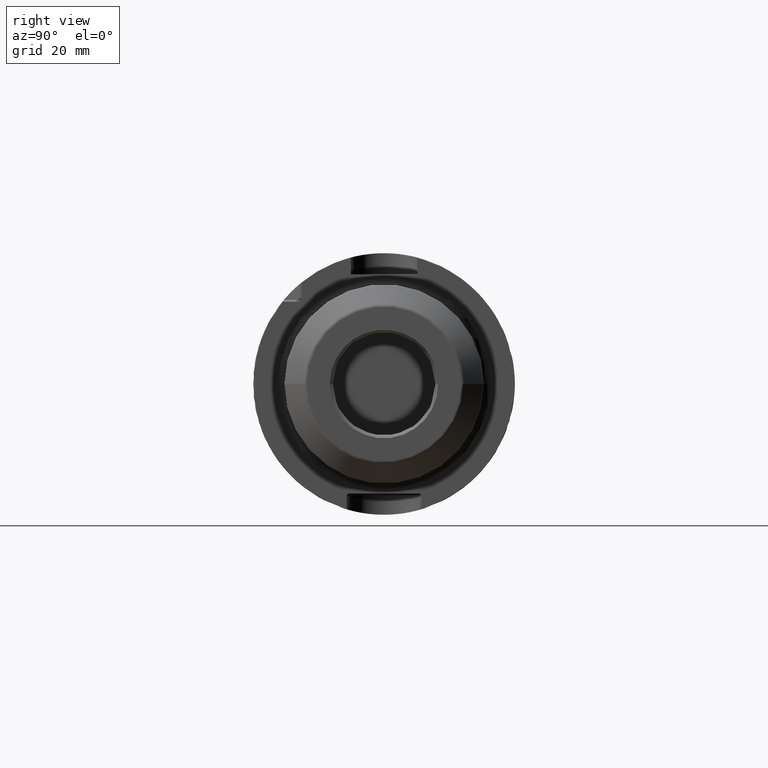
[diagram: clean part render]
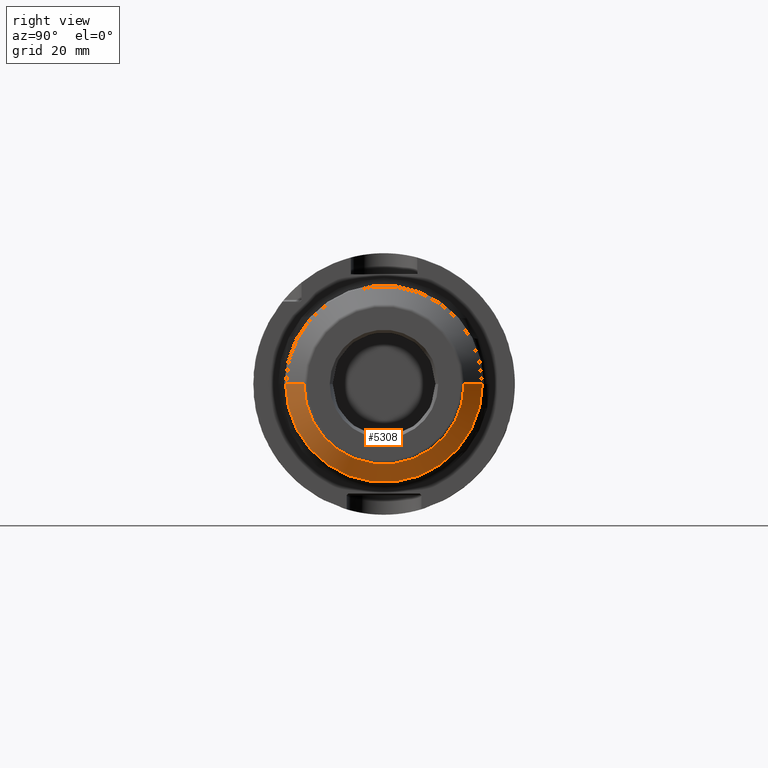
[diagram: same view with one face highlighted and labeled with its STEP entity id]
A machine part, right view. The second image highlights one B-rep face of the part: STEP entity #5308.
In plain terms, the highlighted conical surface has half-angle 45 deg.
Its self-contained STEP definition (entity closure, byte-faithful):
#2004=CARTESIAN_POINT('',(1.152928932188E2,0.E0,0.E0));
#2005=DIRECTION('',(-1.E0,0.E0,0.E0));
#2006=DIRECTION('',(0.E0,1.E0,-8.111901741311E-13));
#2007=AXIS2_PLACEMENT_3D('',#2004,#2005,#2006);
#2009=CARTESIAN_POINT('',(1.197071067812E2,0.E0,0.E0));
#2010=DIRECTION('',(1.E0,0.E0,0.E0));
#2011=DIRECTION('',(0.E0,-1.E0,8.115117986610E-13));
#2012=AXIS2_PLACEMENT_3D('',#2009,#2010,#2011);
#2014=DIRECTION('',(7.071067811865E-1,-7.071067811865E-1,-8.393675191480E-12));
#2015=VECTOR('',#2014,6.242640687119E0);
#2016=CARTESIAN_POINT('',(1.152928932188E2,2.370710678119E1,
2.662494698397E-10));
#2017=LINE('',#2016,#2015);
#2028=DIRECTION('',(7.071067811865E-1,7.071067811865E-1,8.392494842825E-12));
#2029=VECTOR('',#2028,6.242640687119E0);
#2030=CARTESIAN_POINT('',(1.152928932188E2,-2.370710678119E1,
-2.662356028688E-10));
#2031=LINE('',#2030,#2029);
#3118=CARTESIAN_POINT('',(1.152928932188E2,2.370710678119E1,
-1.923097207798E-11));
#3119=CARTESIAN_POINT('',(1.152928932188E2,-2.370710678119E1,
1.923859686505E-11));
#3120=VERTEX_POINT('',#3118);
#3121=VERTEX_POINT('',#3119);
#3126=CARTESIAN_POINT('',(1.197071067812E2,-1.929289321881E1,
1.565641047737E-11));
#3127=CARTESIAN_POINT('',(1.197071067812E2,1.929289321881E1,
-1.565877317537E-11));
#3128=VERTEX_POINT('',#3126);
#3129=VERTEX_POINT('',#3127);
#5294=CARTESIAN_POINT('',(1.175E2,0.E0,0.E0));
#5295=DIRECTION('',(-1.E0,0.E0,0.E0));
#5296=DIRECTION('',(0.E0,0.E0,-1.E0));
#5297=AXIS2_PLACEMENT_3D('',#5294,#5295,#5296);
#5298=CONICAL_SURFACE('',#5297,2.15E1,4.5E1);
#5299=ORIENTED_EDGE('',*,*,#5276,.T.);
#5301=ORIENTED_EDGE('',*,*,#5300,.T.);
#5303=ORIENTED_EDGE('',*,*,#5302,.T.);
#5305=ORIENTED_EDGE('',*,*,#5304,.F.);
#5306=EDGE_LOOP('',(#5299,#5301,#5303,#5305));
#5307=FACE_OUTER_BOUND('',#5306,.F.);
#5308=ADVANCED_FACE('',(#5307),#5298,.T.);
#2008=CIRCLE('',#2007,2.370710678119E1);
#2013=CIRCLE('',#2012,1.929289321881E1);
#5276=EDGE_CURVE('',#3120,#3121,#2008,.T.);
#5300=EDGE_CURVE('',#3121,#3128,#2031,.T.);
#5302=EDGE_CURVE('',#3128,#3129,#2013,.T.);
#5304=EDGE_CURVE('',#3120,#3129,#2017,.T.);